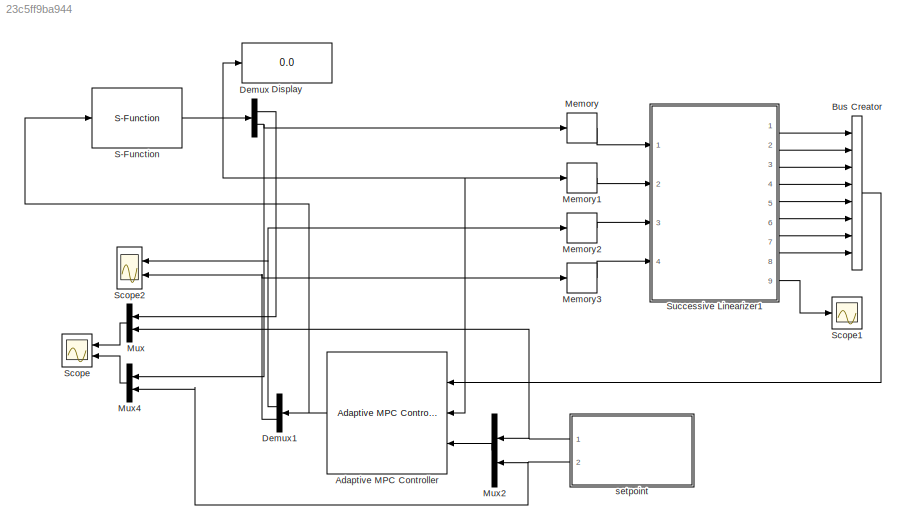
MODEL slx_23c5ff9ba944
KIND model
CONFIG AbsTol = auto
CONFIG EnableMultiTasking = off
CONFIG FixedStep = auto
CONFIG MaxStep = 0.5
CONFIG MinStep = auto
CONFIG RelTol = 1e-3
CONFIG SampleTimeConstraint = Unconstrained
CONFIG SolverName = ode45
CONFIG StartTime = 0.0
CONFIG StopTime = 120
BLOCK [Reference] Adaptive MPC Controller  REF=mpclib/Adaptive MPC Controller  (lib defined in mdl_ae329e0e0455)
  Ports = [3, 1]
  SCDEnableBlockLinearizationSpecification = on
  SourceBlock = mpclib/Adaptive MPC Controller
  SourceProductBaseCode = MP
  SourceType = Adaptive MPC
BLOCK [BusCreator] Bus Creator
  DisplayOption = bar
  InheritFromInputs = on
  Inputs = 8
  Ports = [8, 1]
BLOCK [Demux] Demux
  Outputs = 2
  Ports = [1, 2]
BLOCK [Demux] Demux1
  Outputs = 2
  Ports = [1, 2]
BLOCK [Display] Display
  Decimation = 1
  Ports = [1]
BLOCK [Memory] Memory
  InitialCondition = 438.51
BLOCK [Memory] Memory1
  InitialCondition = [0.1;438.51]
BLOCK [Memory] Memory2
  InitialCondition = 103.41
BLOCK [Memory] Memory3
  InitialCondition = 100
BLOCK [Mux] Mux
  DisplayOption = bar
  Inputs = 2
  NameLocation = top
  Ports = [2, 1]
BLOCK [Mux] Mux2
  DisplayOption = bar
  Inputs = 2
  Ports = [2, 1]
BLOCK [Mux] Mux4
  DisplayOption = bar
  Inputs = 2
  NameLocation = top
  Ports = [2, 1]
BLOCK [S-Function] S-Function
  EnableBusSupport = off
  FunctionName = pr_sfun
  Ports = [1, 1]
  SFcnIsStateOwnerBlock = off
  SFunctionDeploymentMode = off
BLOCK [Scope] Scope
  Floating = off
  NumInputPorts = 2
  Ports = [2]
  ScopeSpecificationString = Simulink.scopes.TimeScopeBlockCfg('CurrentConfiguration', extmgr.ConfigurationSet(extmgr.Configuration('Core','General UI',true),extmgr.Configuration('Core','Source UI',true),extmgr.Configuration('Sources','WiredSimulink',true,'DataLoggingVariableName','ScopeData1'),extmgr.Configuration('Visuals','Time Domain',true,'SerializedDisplays',{struct('MinYLimReal','0.00136','MaxYLimReal','0.16039','YLabe...<+2081ch>
BLOCK [Scope] Scope1
  Floating = off
  NumInputPorts = 1
  Ports = [1]
  ScopeSpecificationString = Simulink.scopes.TimeScopeBlockCfg('CurrentConfiguration', extmgr.ConfigurationSet(extmgr.Configuration('Core','General UI',true),extmgr.Configuration('Core','Source UI',true),extmgr.Configuration('Sources','WiredSimulink',true,'DataLoggingVariableName','ScopeData1'),extmgr.Configuration('Visuals','Time Domain',true,'SerializedDisplays',{struct('MinYLimReal','0.0407','MaxYLimReal','0.38163','YLabel...<+1416ch>
BLOCK [Scope] Scope2
  Floating = off
  NumInputPorts = 2
  Ports = [2]
  ScopeSpecificationString = Simulink.scopes.TimeScopeBlockCfg('CurrentConfiguration', extmgr.ConfigurationSet(extmgr.Configuration('Core','General UI',true),extmgr.Configuration('Core','Source UI',true),extmgr.Configuration('Sources','WiredSimulink',true,'DataLoggingVariableName','ScopeData1'),extmgr.Configuration('Visuals','Time Domain',true,'SerializedDisplays',{struct('MinYLimReal','53.75','MaxYLimReal','116.25','YLabelRe...<+2039ch>
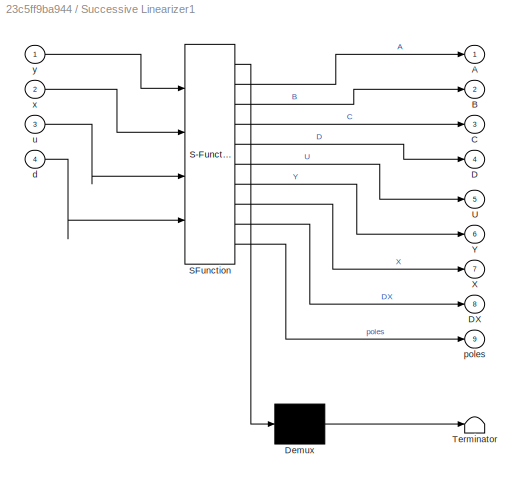
BLOCK [SubSystem] Successive Linearizer1
  ErrorFcn = Stateflow.Translate.translate
  PermitHierarchicalResolution = ExplicitOnly
  Ports = [4, 9]
  RequestExecContextInheritance = off
  SFBlockType = MATLAB Function
  SystemSampleTime = 0.5
  TreatAsAtomicUnit = on
BLOCK [Demux] Successive Linearizer1/ Demux 
  Outputs = 1
  Ports = [1, 1]
BLOCK [S-Function] Successive Linearizer1/ SFunction 
  EnableBusSupport = on
  FunctionName = sf_sfun
  PortCounts = [4 10]
  Ports = [4, 10]
  SFcnIsStateOwnerBlock = off
  SFunctionDeploymentMode = off
  Tag = Stateflow S-Function 1
BLOCK [Terminator] Successive Linearizer1/ Terminator 
BLOCK [Outport] Successive Linearizer1/A
  VectorParamsAs1DForOutWhenUnconnected = off
BLOCK [Outport] Successive Linearizer1/B
  Port = 2
  VectorParamsAs1DForOutWhenUnconnected = off
BLOCK [Outport] Successive Linearizer1/C
  Port = 3
  VectorParamsAs1DForOutWhenUnconnected = off
BLOCK [Outport] Successive Linearizer1/D
  Port = 4
  VectorParamsAs1DForOutWhenUnconnected = off
BLOCK [Outport] Successive Linearizer1/DX
  Port = 8
  VectorParamsAs1DForOutWhenUnconnected = off
BLOCK [Outport] Successive Linearizer1/U
  Port = 5
  VectorParamsAs1DForOutWhenUnconnected = off
BLOCK [Outport] Successive Linearizer1/X
  Port = 7
  VectorParamsAs1DForOutWhenUnconnected = off
BLOCK [Outport] Successive Linearizer1/Y
  Port = 6
  VectorParamsAs1DForOutWhenUnconnected = off
BLOCK [Inport] Successive Linearizer1/d
  Port = 4
BLOCK [Outport] Successive Linearizer1/poles
  Port = 9
BLOCK [Inport] Successive Linearizer1/u
  Port = 3
BLOCK [Inport] Successive Linearizer1/x
  Port = 2
BLOCK [Inport] Successive Linearizer1/y
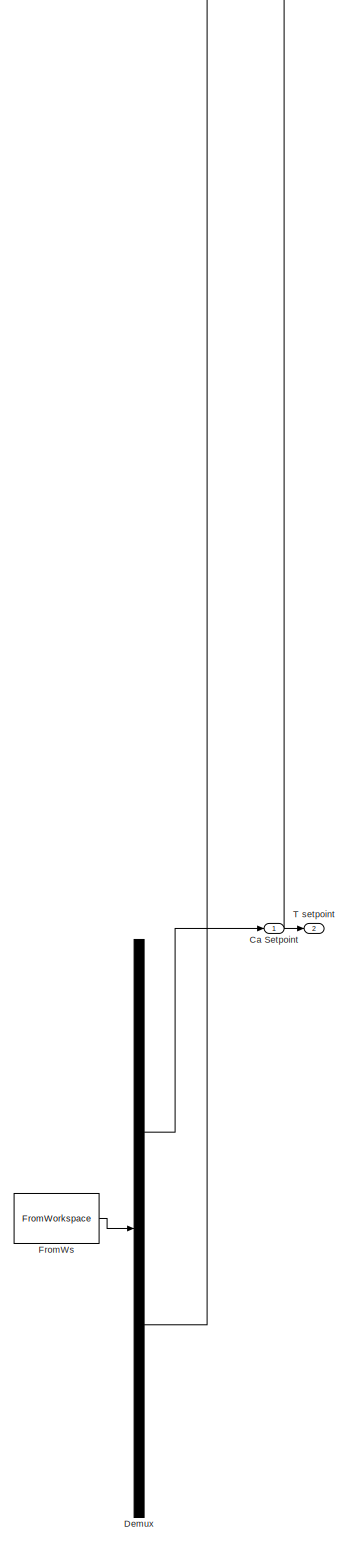
[diagram: setpoint - part 1/1, full width, bottom band]
BLOCK [SubSystem] setpoint
  ClipboardFcn = sigbuilder_block('clipboard');
  CloseFcn = sigbuilder_block('close');
  ContinueFcn = sigbuilder_block('continue');
  CopyFcn = sigbuilder_block('copy');
  DeleteFcn = sigbuilder_block('delete');
  LoadFcn = sigbuilder_block('load');
  MaskHideContents = on
  ModelCloseFcn = sigbuilder_block('modelClose');
  NameChangeFcn = sigbuilder_block('namechange');
  OpenFcn = sigbuilder_block('open',[5.5 0 949 448 ]);
  PauseFcn = sigbuilder_block('pause');
  Ports = [0, 2]
  PreSaveFcn = sigbuilder_block('preSave');
  RequestExecContextInheritance = off
  StartFcn = sigbuilder_block('start');
  StopFcn = sigbuilder_block('stop');
  Tag = STV Subsys
BLOCK [Outport] setpoint/Ca Setpoint
  Tag = STV Outport
BLOCK [Demux] setpoint/Demux
  DisplayOption = none
  Outputs = 2
  Ports = [1, 2]
  Tag = STV Demux
BLOCK [FromWorkspace] setpoint/FromWs
  Tag = STV FromWs
  VariableName = tuvar
BLOCK [Outport] setpoint/T setpoint
  Port = 2
  Tag = STV Outport
NET Adaptive MPC Controller:1 -> Demux1:1, S-Function:1
LINE Bus Creator:1 -> Adaptive MPC Controller:1
NET Demux1:1 -> Memory2:1, Scope2:1
NET Demux1:2 -> Memory3:1, Scope2:2
LINE Demux:1 -> Mux:1
NET Demux:2 -> Memory:1, Mux4:1
LINE Memory1:1 -> Successive Linearizer1:2
LINE Memory2:1 -> Successive Linearizer1:3
LINE Memory3:1 -> Successive Linearizer1:4
LINE Memory:1 -> Successive Linearizer1:1
LINE Mux2:1 -> Adaptive MPC Controller:3
LINE Mux4:1 -> Scope:2
LINE Mux:1 -> Scope:1
NET S-Function:1 -> Adaptive MPC Controller:2, Demux:1, Display:1, Memory1:1
LINE Successive Linearizer1:1 -> Bus Creator:1
LINE Successive Linearizer1:2 -> Bus Creator:2
LINE Successive Linearizer1:3 -> Bus Creator:3
LINE Successive Linearizer1:4 -> Bus Creator:4
LINE Successive Linearizer1:5 -> Bus Creator:5
LINE Successive Linearizer1:6 -> Bus Creator:6
LINE Successive Linearizer1:7 -> Bus Creator:7
LINE Successive Linearizer1:8 -> Bus Creator:8
LINE Successive Linearizer1:9 -> Scope1:1
NET setpoint:1 -> Mux2:1, Mux:2
NET setpoint:2 -> Mux2:2, Mux4:2
note: NET lines group one-source signal fan-out (src -> all destinations, sorted); 1:1 wires keep LINE
CHART Successive Linearizer1 states=1 transitions=1
  STATE_LABEL 'eML_blk_kernel()'
  STATE_LABEL 'SCRIPT:\nfunction [A, B, C, D, U, Y, X, DX,poles] = fcn(y, x, u, d)\n\n%%%%%%%%%%%%%%%%%%%%%%%%%%%%%%%%%%%%%%%%%%%%%%%%%%%%%%%\n%#codegen\nx_1 = x(1);\nx_2 = x(2);\ny1 = x_1; \ny2 = x_2;\n% Define constant outputs\nTs = 0.1;\n\nU = [u(1) ; d(1)] ;\nY = [y1 ; y2];\n%X = x(1:2);\n%Y = [x_1;x_2];\nX = [y1 ; y2];\n\n\n\n\n% Analytical linearization of mechanistic CSTR model (continuous time)\n% [A, Bo] = getContinuous(T, C...<+2766ch>'
CHART  states=0 transitions=0
